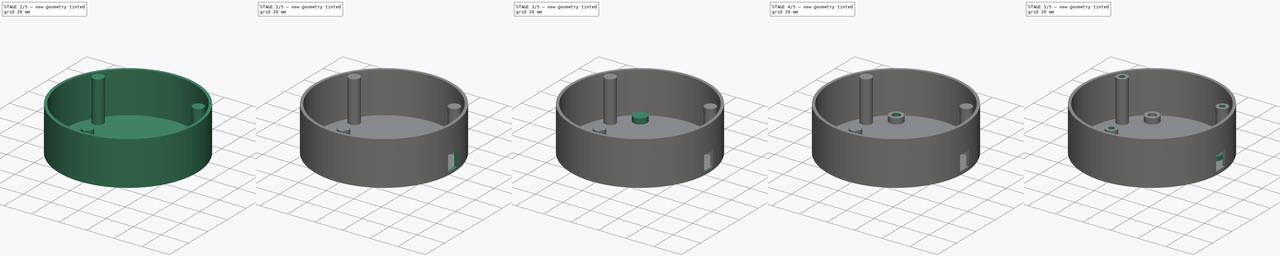
[diagram: build sequence overview — one tinted view per stage of 5, left to right]
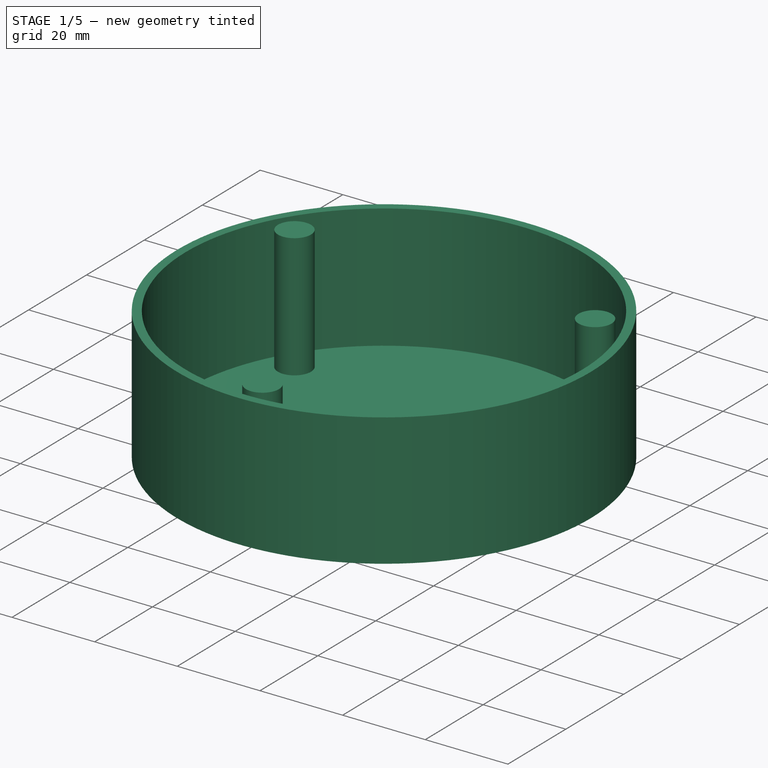
[diagram: stage 1 of 5 — iso view after this stage's code; geometry added in this stage tinted green]
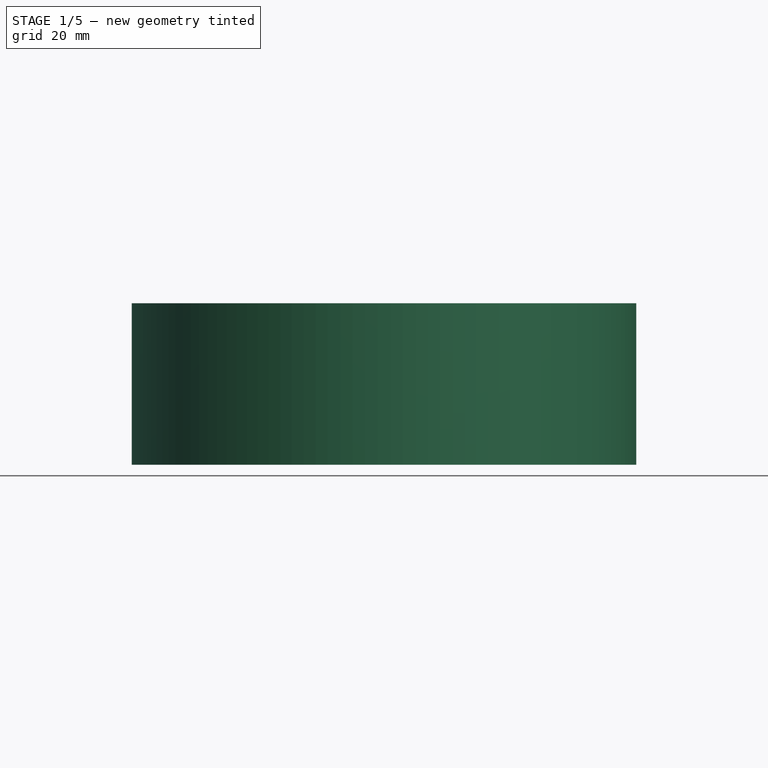
[diagram: stage 1 of 5 — front view after this stage's code; geometry added in this stage tinted green]
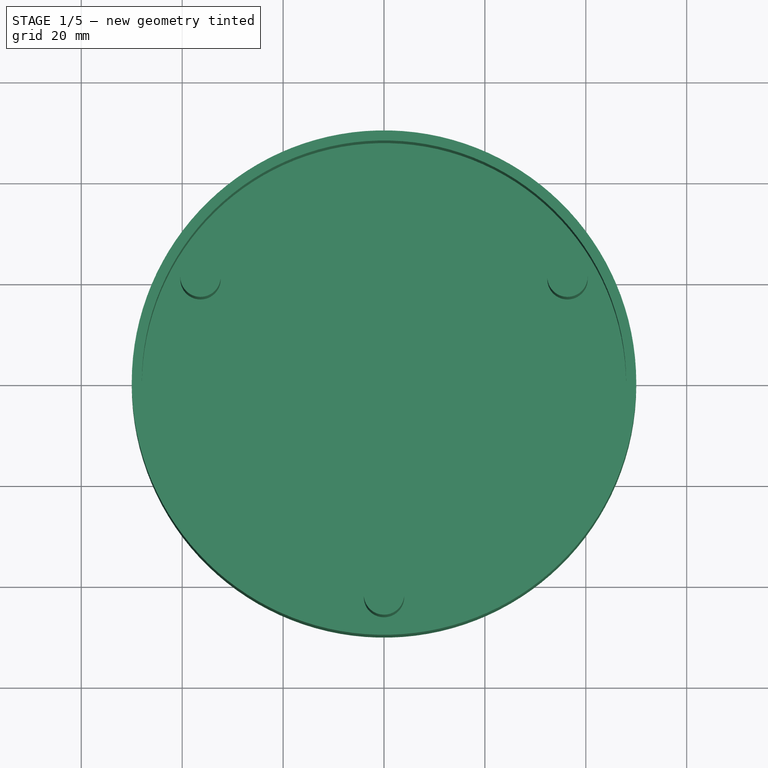
[diagram: stage 1 of 5 — top view after this stage's code; geometry added in this stage tinted green]
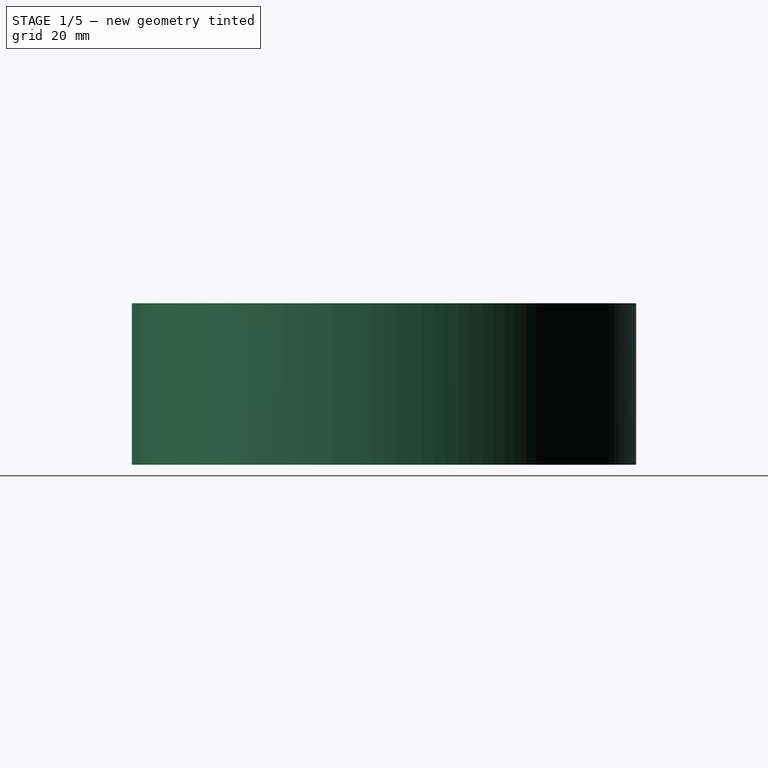
[diagram: stage 1 of 5 — right view after this stage's code; geometry added in this stage tinted green]
FCSTD DOCUMENT  (FreeCAD 0.20R29603 (Git))
Label: ElectroCompartment
License: All rights reserved
LicenseURL: http://en.wikipedia.org/wiki/All_rights_reserved
objects: Sketcher::SketchObject×14, PartDesign::Pocket×8, PartDesign::Pad×6, PartDesign::Plane×4, PartDesign::Mirrored×1, PartDesign::Body×1
note: 48 computed .brp shape members not serialized (recipe doc carries the construction recipe); baked Part::Feature solids carry a one-line shape summary decoded from their .brp

FEATURE [Sketcher::SketchObject] Sketch
  FullyConstrained = true
  MapMode = 5
  Support = -> [XY_Plane]
  sketch-geometry (1):
    g0: Circle CenterX=0 CenterY=0 CenterZ=0 NormalX=0 NormalY=0 NormalZ=1 AngleXU=0 Radius=50
  constraints (2):
    c: Coincident(g0,g-1)
    c: Diameter(g0) = 100
FEATURE [PartDesign::Pad] Pad
  Direction = (0,0,1)
  Length = 32
  Length2 = 10
  Profile = -> Sketch
  ReferenceAxis = -> Sketch [N_Axis]
  Type = 0
FEATURE [PartDesign::Plane] DatumPlane
  AttachmentOffset = pos=(0,0,32) rot=(0,0,1;0rad)
  Length = 95.8863
  MapMode = 5
  Placement = pos=(0,0,32) rot=(0,0,1;0rad)
  ResizeMode = 0
  Support = -> [XY_Plane]
  Width = 86.111
FEATURE [Sketcher::SketchObject] Sketch001
  FullyConstrained = true
  MapMode = 5
  Placement = pos=(0,0,32) rot=(0,0,1;0rad)
  Support = -> [DatumPlane]
  sketch-geometry (1):
    g0: Circle CenterX=0 CenterY=0 CenterZ=0 NormalX=0 NormalY=0 NormalZ=1 AngleXU=0 Radius=48
  constraints (2):
    c: Coincident(g0,g-1)
    c: Diameter(g0) = 96
FEATURE [PartDesign::Pocket] Pocket
  BaseFeature = -> Pad
  Direction = (0,0,-1)
  Length = 30
  Length2 = 5
  Profile = -> Sketch001
  ReferenceAxis = -> Sketch001 [N_Axis]
  Type = 0
FEATURE [Sketcher::SketchObject] Sketch002
  FullyConstrained = true
  MapMode = 5
  Placement = pos=(0,0,32) rot=(0,0,1;0rad)
  Support = -> [DatumPlane]
  sketch-geometry (6):
    g0: Circle CenterX=-36.3731 CenterY=21 CenterZ=0 NormalX=0 NormalY=0 NormalZ=1 AngleXU=0 Radius=4
    g1: Circle CenterX=0 CenterY=-42 CenterZ=0 NormalX=0 NormalY=0 NormalZ=1 AngleXU=0 Radius=4
    g2: Circle CenterX=0 CenterY=0 CenterZ=0 NormalX=0 NormalY=0 NormalZ=1 AngleXU=0 Radius=42
    g3: Circle CenterX=36.3731 CenterY=21 CenterZ=0 NormalX=0 NormalY=0 NormalZ=1 AngleXU=0 Radius=4
    g4: LineSegment StartX=-36.3731 StartY=21 StartZ=0 EndX=0 EndY=0 EndZ=0
    g5: LineSegment StartX=0 StartY=0 StartZ=0 EndX=36.3731 EndY=21 EndZ=0
  constraints (15):
    c: Equal(g0,g1)
    c: Diameter(g0) = 8
    c: Diameter(g2) = 84
    c: PointOnObject(g1,g-2)
    c: PointOnObject(g1,g2)
    c: PointOnObject(g0,g2)
    c: Coincident(g2,g-1)
    c: PointOnObject(g3,g2)
    c: Diameter(g3) = 8
    c: Coincident(g4,g0)
    c: Coincident(g4,g2)
    c: Coincident(g5,g2)
    c: Coincident(g5,g3)
    c: Angle(g-1,g5) = 0.523599
    c: Angle(g-1,g4) = 2.61799
FEATURE [PartDesign::Pad] Pad001
  BaseFeature = -> Pocket
  Direction = (0,0,1)
  Length = 10
  Length2 = 10
  Profile = -> Sketch002
  ReferenceAxis = -> Sketch002 [N_Axis]
  Type = 3
  UpToFace = -> Pocket [Face5]
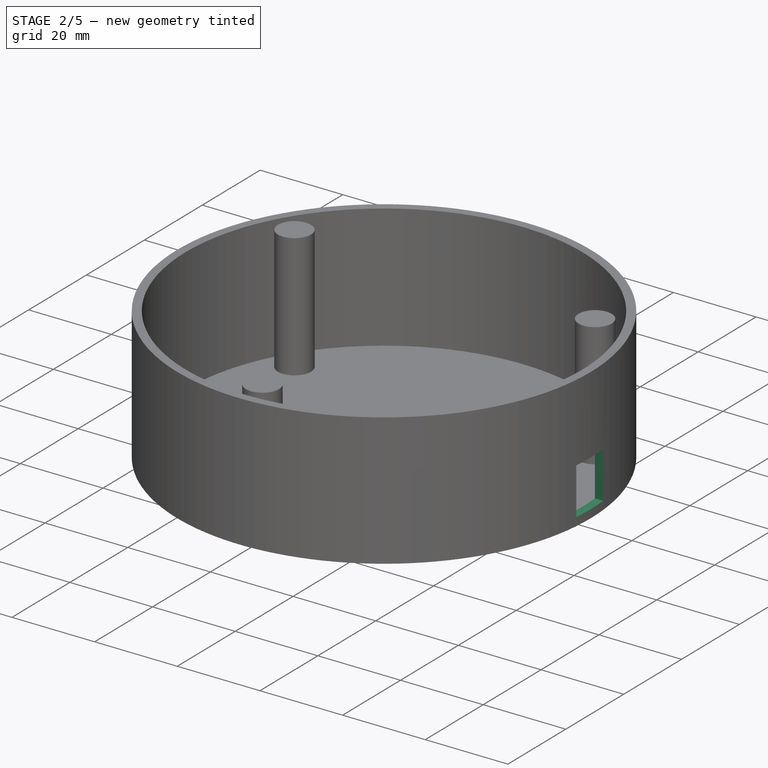
[diagram: stage 2 of 5 — iso view after this stage's code; geometry added in this stage tinted green]
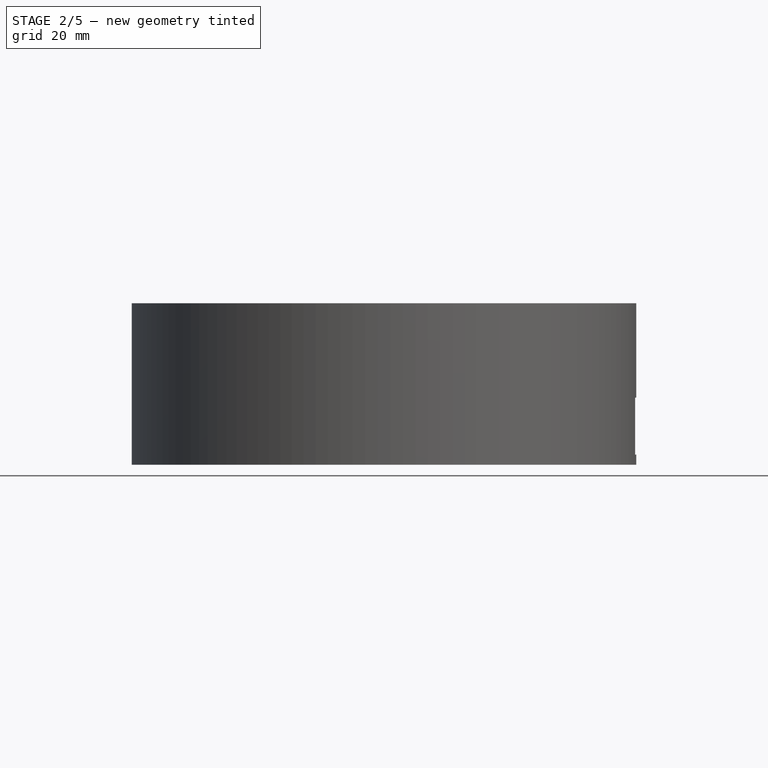
[diagram: stage 2 of 5 — front view after this stage's code; geometry added in this stage tinted green]
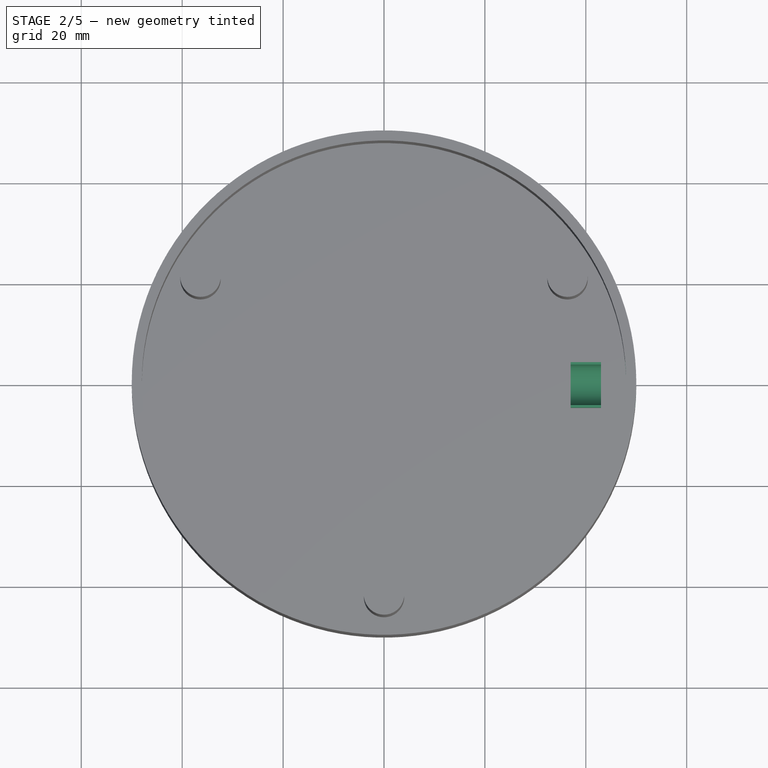
[diagram: stage 2 of 5 — top view after this stage's code; geometry added in this stage tinted green]
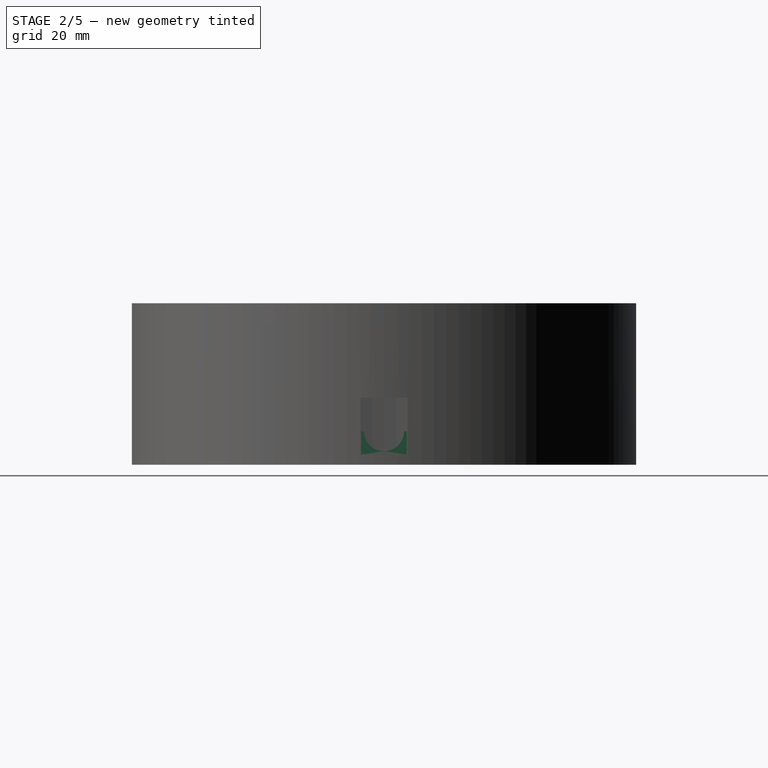
[diagram: stage 2 of 5 — right view after this stage's code; geometry added in this stage tinted green]
FEATURE [PartDesign::Plane] DatumPlane001
  AttachmentOffset = pos=(0,0,2) rot=(0,0,1;0rad)
  Length = 95.8863
  MapMode = 5
  Placement = pos=(0,0,2) rot=(0,0,1;0rad)
  ResizeMode = 0
  Support = -> [XY_Plane]
  Width = 86.111
FEATURE [PartDesign::Plane] DatumPlane002
  AttachmentOffset = pos=(0,0,50) rot=(0,0,1;0rad)
  Length = 83.6914
  MapMode = 5
  Placement = pos=(50,-1.11e-14,1.11e-14) rot=(0.57735,0.57735,0.57735;2.0944rad)
  ResizeMode = 0
  Support = -> [YZ_Plane]
  Width = 69.7206
FEATURE [Sketcher::SketchObject] Sketch005
  FullyConstrained = true
  MapMode = 5
  Placement = pos=(50,-1.11e-14,1.11e-14) rot=(0.57735,0.57735,0.57735;2.0944rad)
  Support = -> [DatumPlane002]
  sketch-geometry (5):
    g0: LineSegment StartX=4.65 StartY=13.3 StartZ=0 EndX=4.65 EndY=2 EndZ=0
    g1: LineSegment StartX=4.65 StartY=2 StartZ=0 EndX=-4.65 EndY=2 EndZ=0
    g2: LineSegment StartX=-4.65 StartY=2 StartZ=0 EndX=-4.65 EndY=13.3 EndZ=0
    g3: LineSegment StartX=-4.65 StartY=13.3 StartZ=0 EndX=4.65 EndY=13.3 EndZ=0
    g4: GeomPoint X=0 Y=7.65 Z=0
  constraints (13):
    c: Coincident(g0,g1)
    c: Coincident(g1,g2)
    c: Coincident(g2,g3)
    c: Coincident(g3,g0)
    c: Horizontal(g1)
    c: Horizontal(g3)
    c: Vertical(g0)
    c: Vertical(g2)
    c: Symmetric(g1,g0,g4)
    c: PointOnObject(g4,g-2)
    c: DistanceY(g2,g2) = 11.3
    c: DistanceX(g3,g3) = 9.3
    c: DistanceY(g-1,g0) = 2
FEATURE [PartDesign::Pocket] Pocket001
  BaseFeature = -> Pad001
  Direction = (-1,1e-16,-1e-16)
  Length = 10
  Length2 = 5
  Profile = -> Sketch005
  ReferenceAxis = -> Sketch005 [N_Axis]
  Type = 0
FEATURE [Sketcher::SketchObject] Sketch006
  FullyConstrained = true
  MapMode = 5
  Placement = pos=(0,0,2) rot=(0,0,1;0rad)
  Support = -> [DatumPlane001]
  sketch-geometry (5):
    g0: LineSegment StartX=37 StartY=-4.5 StartZ=0 EndX=37 EndY=4.5 EndZ=0
    g1: LineSegment StartX=37 StartY=4.5 StartZ=0 EndX=43 EndY=4.5 EndZ=0
    g2: LineSegment StartX=43 StartY=4.5 StartZ=0 EndX=43 EndY=-4.5 EndZ=0
    g3: LineSegment StartX=43 StartY=-4.5 StartZ=0 EndX=37 EndY=-4.5 EndZ=0
    g4: GeomPoint X=40 Y=0 Z=0
  constraints (13):
    c: Coincident(g0,g1)
    c: Coincident(g1,g2)
    c: Coincident(g2,g3)
    c: Coincident(g3,g0)
    c: Horizontal(g1)
    c: Horizontal(g3)
    c: Vertical(g0)
    c: Vertical(g2)
    c: Symmetric(g1,g0,g4)
    c: PointOnObject(g4,g-1)
    c: DistanceY(g2,g2) = 9
    c: DistanceX(g-1,g2) = 43
    c: DistanceX(g1,g1) = 6
FEATURE [PartDesign::Pad] Pad004
  BaseFeature = -> Pocket001
  Direction = (0,0,1)
  Length = 10
  Length2 = 10
  Profile = -> Sketch006
  ReferenceAxis = -> Sketch006 [N_Axis]
  Type = 0
FEATURE [Sketcher::SketchObject] Sketch007
  FullyConstrained = false
  MapMode = 5
  Placement = pos=(37,0,0) rot=(0.57735,-0.57735,-0.57735;2.0944rad)
  Support = -> [Pad004]
  sketch-geometry (7):
    g0: ArcOfCircle CenterX=0 CenterY=6.7 CenterZ=0 NormalX=0 NormalY=0 NormalZ=1 AngleXU=0 Radius=4 StartAngle=3.1666 EndAngle=6.25818
    g1: LineSegment StartX=-6.53799 StartY=2.7 StartZ=0 EndX=7.7033 EndY=2.7 EndZ=0
    g2: LineSegment StartX=-3.99875 StartY=6.6 StartZ=0 EndX=-6.9063 EndY=6.6 EndZ=0
    g3: LineSegment StartX=-6.9063 StartY=6.6 StartZ=0 EndX=-6.9063 EndY=15.9691 EndZ=0
    g4: LineSegment StartX=-6.9063 StartY=15.9691 StartZ=0 EndX=5.57529 EndY=15.9691 EndZ=0
    g5: LineSegment StartX=5.57529 StartY=15.9691 StartZ=0 EndX=5.57529 EndY=6.6 EndZ=0
    g6: LineSegment StartX=5.57529 StartY=6.6 StartZ=0 EndX=3.99875 EndY=6.6 EndZ=0
  constraints (18):
    c: PointOnObject(g0,g-2)
    c: Diameter(g0) = 8
    c: Horizontal(g1)
    c: Tangent(g1,g0)
    c: DistanceY(g-1,g1) = 2.7
    c: Horizontal(g2)
    c: Coincident(g3,g2)
    c: Vertical(g3)
    c: Coincident(g4,g3)
    c: Horizontal(g4)
    c: Coincident(g5,g4)
    c: Vertical(g5)
    c: Coincident(g6,g5)
    c: Horizontal(g6)
    c: DistanceY(g5,g2) = 0
    c: DistanceY(g1,g5) = 3.9
    c: Coincident(g0,g6)
    c: Coincident(g0,g2)
FEATURE [PartDesign::Pocket] Pocket002
  BaseFeature = -> Pad004
  Direction = (1,0,0)
  Length = 8
  Length2 = 5
  Profile = -> Sketch007
  ReferenceAxis = -> Sketch007 [N_Axis]
  Type = 0
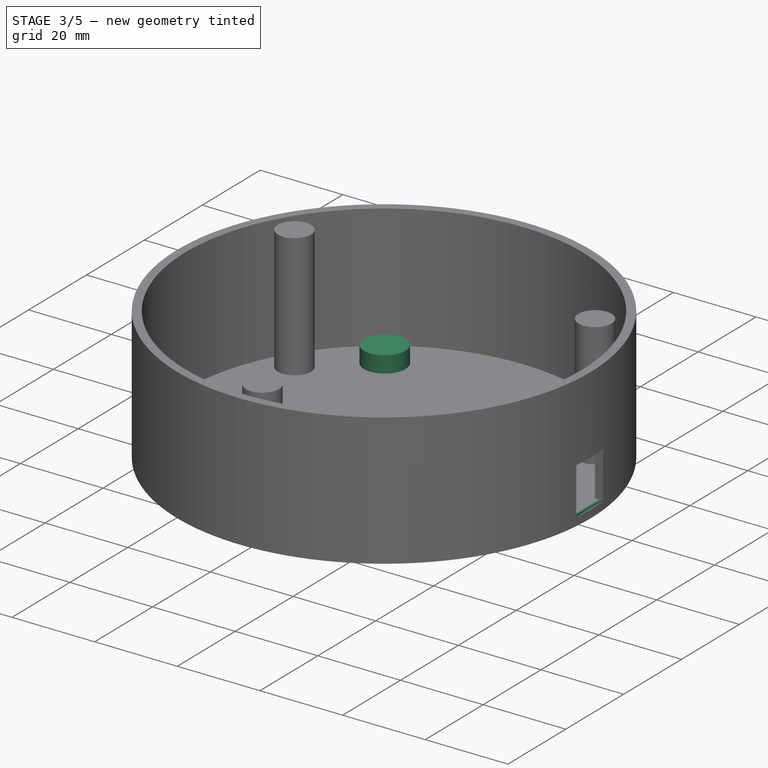
[diagram: stage 3 of 5 — iso view after this stage's code; geometry added in this stage tinted green]
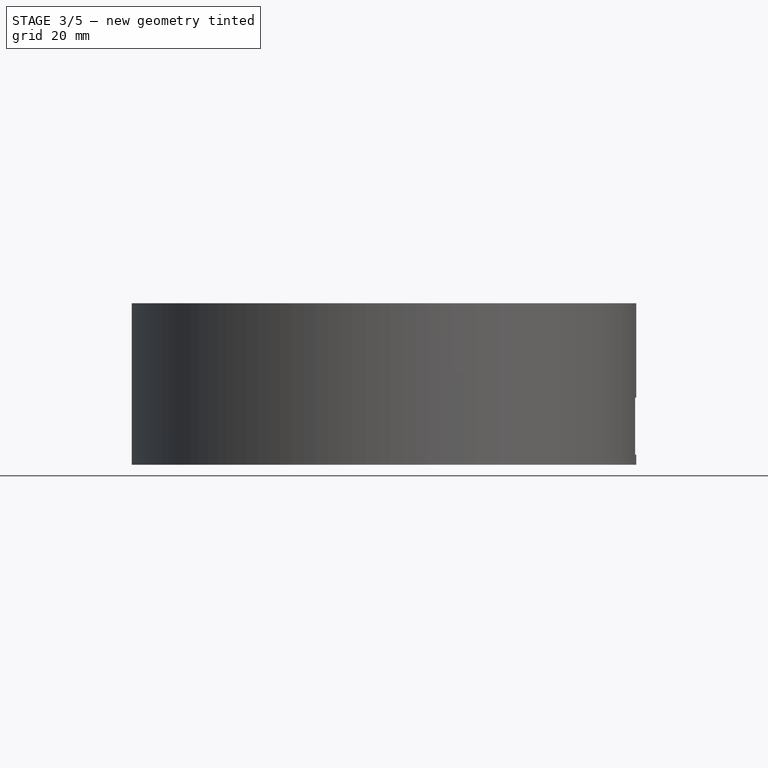
[diagram: stage 3 of 5 — front view after this stage's code; geometry added in this stage tinted green]
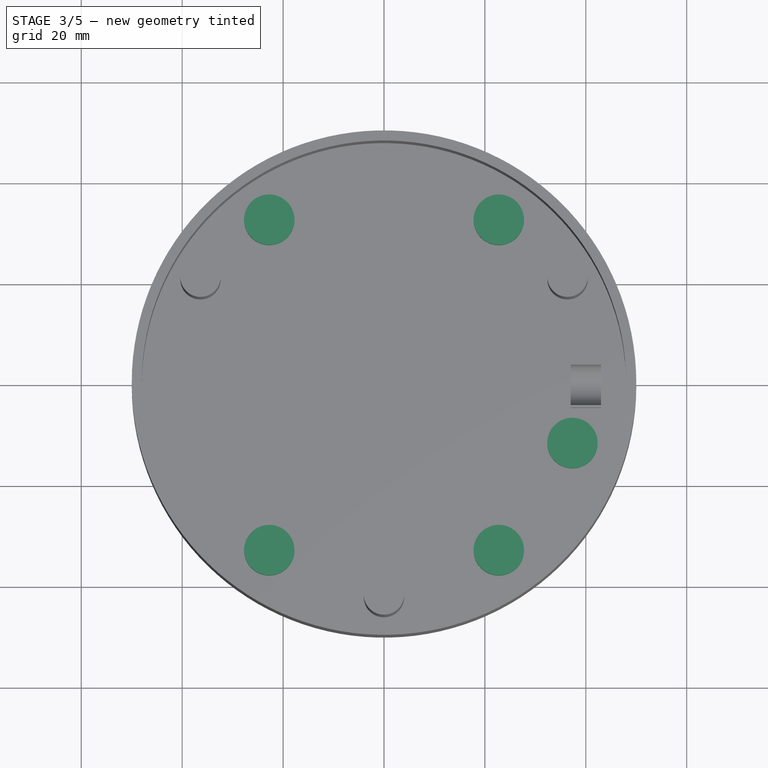
[diagram: stage 3 of 5 — top view after this stage's code; geometry added in this stage tinted green]
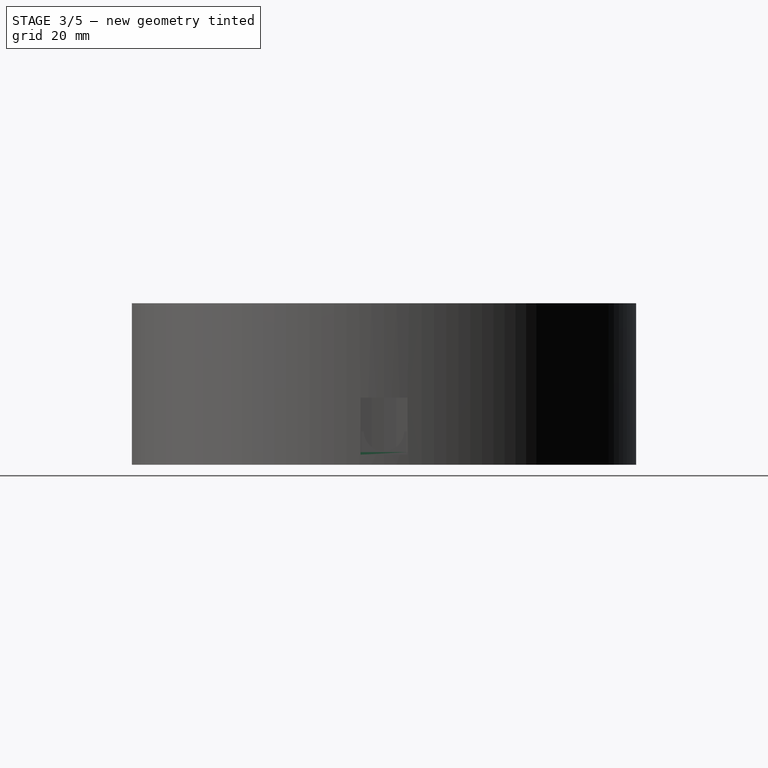
[diagram: stage 3 of 5 — right view after this stage's code; geometry added in this stage tinted green]
FEATURE [Sketcher::SketchObject] Sketch009
  FullyConstrained = true
  MapMode = 5
  Placement = pos=(0,0,2) rot=(0,0,1;0rad)
  Support = -> [DatumPlane001]
  sketch-geometry (4):
    g0: Circle CenterX=-22.75 CenterY=32.75 CenterZ=0 NormalX=0 NormalY=0 NormalZ=1 AngleXU=0 Radius=5
    g1: Circle CenterX=22.75 CenterY=32.75 CenterZ=0 NormalX=0 NormalY=0 NormalZ=1 AngleXU=0 Radius=5
    g2: Circle CenterX=22.75 CenterY=-32.75 CenterZ=0 NormalX=0 NormalY=0 NormalZ=1 AngleXU=0 Radius=5
    g3: Circle CenterX=-22.75 CenterY=-32.75 CenterZ=0 NormalX=0 NormalY=0 NormalZ=1 AngleXU=0 Radius=5
  constraints (12):
    c: DistanceX(g0,g-1) = 22.75
    c: DistanceY(g-1,g0) = 32.75
    c: Diameter(g0) = 10
    c: DistanceX(g-1,g1) = 22.75
    c: DistanceY(g-1,g1) = 32.75
    c: DistanceY(g2,g-1) = 32.75
    c: DistanceX(g-1,g2) = 22.75
    c: DistanceX(g3,g-1) = 22.75
    c: DistanceY(g3,g-1) = 32.75
    c: Equal(g1,g2)
    c: Equal(g1,g3)
    c: Diameter(g1) = 10
FEATURE [PartDesign::Pad] Pad006
  BaseFeature = -> Pocket002
  Direction = (0,0,1)
  Length = 4
  Length2 = 10
  Profile = -> Sketch009
  ReferenceAxis = -> Sketch009 [N_Axis]
  Type = 0
FEATURE [Sketcher::SketchObject] Sketch011
  FullyConstrained = true
  MapMode = 5
  Placement = pos=(0,0,2) rot=(0,0,1;0rad)
  Support = -> [DatumPlane001]
  sketch-geometry (6):
    g0: LineSegment StartX=49.7833 StartY=4.65 StartZ=0 EndX=49.7833 EndY=-4.65 EndZ=0
    g1: LineSegment StartX=0 StartY=0 StartZ=0 EndX=49.7833 EndY=4.65 EndZ=0
    g2: LineSegment StartX=49.7833 StartY=-4.65 StartZ=0 EndX=0 EndY=0 EndZ=0
    g3: LineSegment StartX=49.2833 StartY=4.65 StartZ=0 EndX=49.2833 EndY=-4.65 EndZ=0
    g4: LineSegment StartX=49.2833 StartY=-4.65 StartZ=0 EndX=49.7833 EndY=-4.65 EndZ=0
    g5: LineSegment StartX=49.2833 StartY=4.65 StartZ=0 EndX=49.7833 EndY=4.65 EndZ=0
  constraints (16):
    c: Vertical(g0)
    c: Coincident(g1,g-1)
    c: Coincident(g1,g0)
    c: Coincident(g2,g0)
    c: Coincident(g2,g1)
    c: DistanceY(g0,g0) = 9.3
    c: DistanceY(g1,g0) = 4.65
    c: Vertical(g3)
    c: Coincident(g4,g3)
    c: Coincident(g4,g0)
    c: Horizontal(g4)
    c: Coincident(g5,g3)
    c: Coincident(g5,g0)
    c: Horizontal(g5)
    c: DistanceX(g5,g5) = 0.5
    c: Distance(g1) = 50
FEATURE [PartDesign::Pad] Pad007
  BaseFeature = -> Pad006
  Direction = (0,0,1)
  Length = 0.5
  Length2 = 10
  Profile = -> Sketch011
  ReferenceAxis = -> Sketch011 [N_Axis]
  Type = 0
FEATURE [Sketcher::SketchObject] Sketch012
  FullyConstrained = true
  MapMode = 5
  Placement = pos=(0,0,2) rot=(0,0,1;0rad)
  Support = -> [DatumPlane001]
  sketch-geometry (1):
    g0: Circle CenterX=37.35 CenterY=-11.5 CenterZ=0 NormalX=0 NormalY=0 NormalZ=1 AngleXU=0 Radius=5
  constraints (3):
    c: Diameter(g0) = 10
    c: DistanceY(g0,g-1) = 11.5
    c: DistanceX(g-1,g0) = 37.35
FEATURE [PartDesign::Pad] Pad008
  BaseFeature = -> Pad007
  Direction = (0,0,1)
  Length = 3
  Length2 = 10
  Profile = -> Sketch012
  ReferenceAxis = -> Sketch012 [N_Axis]
  Type = 0
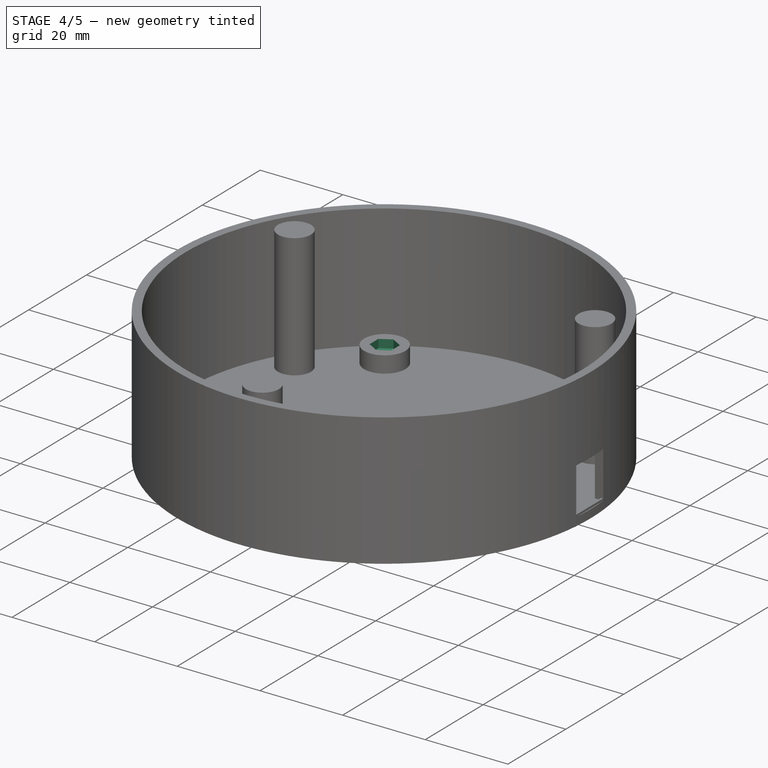
[diagram: stage 4 of 5 — iso view after this stage's code; geometry added in this stage tinted green]
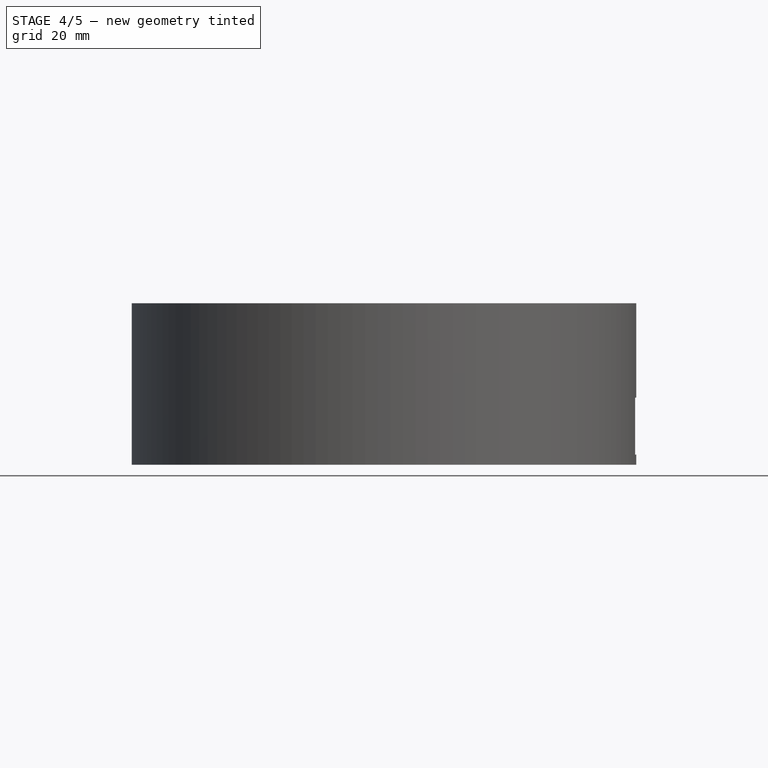
[diagram: stage 4 of 5 — front view after this stage's code; geometry added in this stage tinted green]
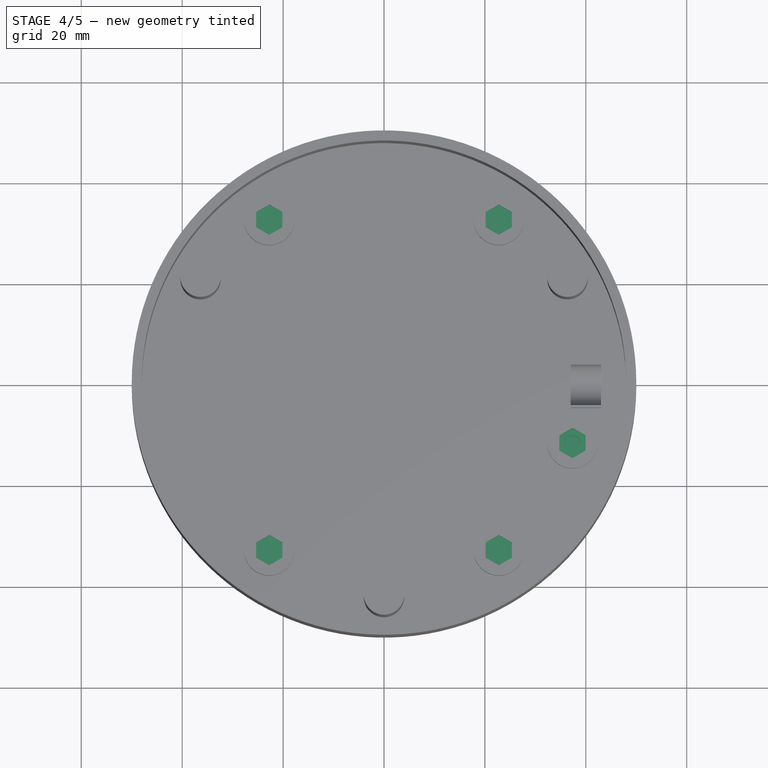
[diagram: stage 4 of 5 — top view after this stage's code; geometry added in this stage tinted green]
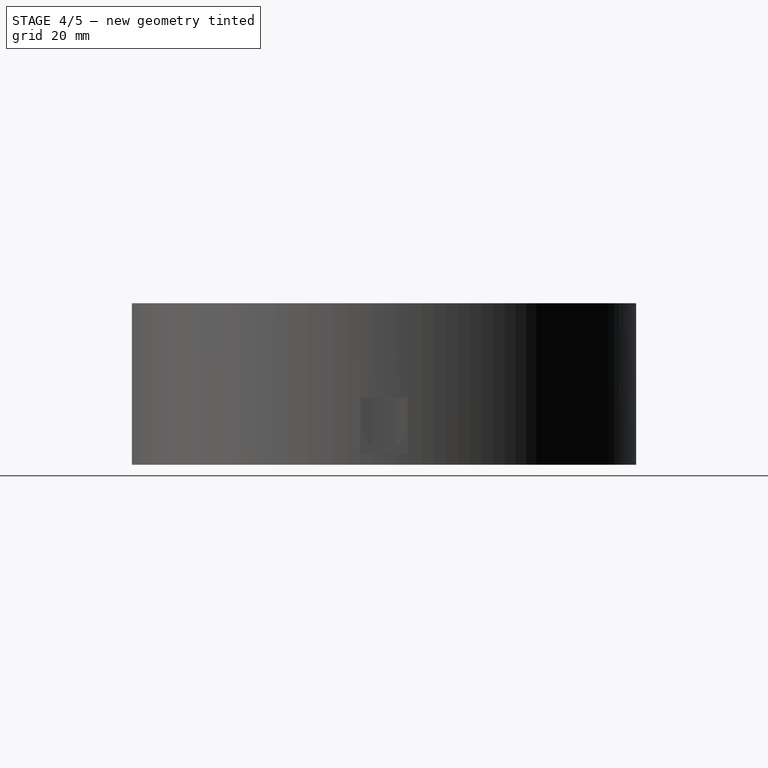
[diagram: stage 4 of 5 — right view after this stage's code; geometry added in this stage tinted green]
FEATURE [Sketcher::SketchObject] Sketch013
  FullyConstrained = true
  MapMode = 5
  Placement = pos=(0,0,5) rot=(0,0,1;0rad)
  Support = -> [Pad008]
  sketch-geometry (7):
    g0: LineSegment StartX=39.95 StartY=-13.0011 StartZ=0 EndX=39.95 EndY=-9.99889 EndZ=0
    g1: LineSegment StartX=39.95 StartY=-9.99889 StartZ=0 EndX=37.35 EndY=-8.49778 EndZ=0
    g2: LineSegment StartX=37.35 StartY=-8.49778 StartZ=0 EndX=34.75 EndY=-9.99889 EndZ=0
    g3: LineSegment StartX=34.75 StartY=-9.99889 StartZ=0 EndX=34.75 EndY=-13.0011 EndZ=0
    g4: LineSegment StartX=34.75 StartY=-13.0011 StartZ=0 EndX=37.35 EndY=-14.5022 EndZ=0
    g5: LineSegment StartX=37.35 StartY=-14.5022 StartZ=0 EndX=39.95 EndY=-13.0011 EndZ=0
    g6: Circle CenterX=37.35 CenterY=-11.5 CenterZ=0 NormalX=0 NormalY=0 NormalZ=1 AngleXU=0 Radius=3.00222
  constraints (17):
    c: Coincident(g0,g1)
    c: Coincident(g1,g2)
    c: Coincident(g2,g3)
    c: Coincident(g3,g4)
    c: Coincident(g4,g5)
    c: Coincident(g5,g0)
    c: Equal(g0, g1-g5) x5
    c: PointOnObject(g0,g6)
    c: PointOnObject(g1,g6)
    c: PointOnObject(g2,g6)
    c: PointOnObject(g3,g6)
    c: PointOnObject(g4,g6)
    c: PointOnObject(g5,g6)
    c: DistanceY(g6,g-1) = 11.5
    c: DistanceX(g-1,g6) = 37.35
    c: Vertical(g0)
    c: DistanceX(g2,g0) = 5.2
FEATURE [PartDesign::Pocket] Pocket004
  BaseFeature = -> Pad008
  Direction = (0,0,-1)
  Length = 2
  Length2 = 5
  Profile = -> Sketch013
  ReferenceAxis = -> Sketch013 [N_Axis]
  Type = 0
FEATURE [Sketcher::SketchObject] Sketch014
  FullyConstrained = true
  MapMode = 5
  Placement = pos=(0,0,5) rot=(0,0,1;0rad)
  Support = -> [Pocket004]
  sketch-geometry (1):
    g0: Circle CenterX=37.35 CenterY=-11.5 CenterZ=0 NormalX=0 NormalY=0 NormalZ=1 AngleXU=0 Radius=1.5
  constraints (3):
    c: Diameter(g0) = 3
    c: DistanceY(g0,g-1) = 11.5
    c: DistanceX(g-1,g0) = 37.35
FEATURE [PartDesign::Pocket] Pocket005
  BaseFeature = -> Pocket004
  Direction = (0,0,-1)
  Length = 4
  Length2 = 5
  Profile = -> Sketch014
  ReferenceAxis = -> Sketch014 [N_Axis]
  Type = 0
FEATURE [PartDesign::Plane] DatumPlane003
  AttachmentOffset = pos=(0,0,6) rot=(0,0,1;0rad)
  Length = 95.8863
  MapMode = 5
  Placement = pos=(0,0,6) rot=(0,0,1;0rad)
  ResizeMode = 0
  Support = -> [XY_Plane]
  Width = 86.111
FEATURE [Sketcher::SketchObject] Sketch010
  FullyConstrained = true
  MapMode = 5
  Placement = pos=(0,0,6) rot=(0,0,1;0rad)
  Support = -> [DatumPlane003]
  sketch-geometry (28):
    g0: LineSegment StartX=-20.15 StartY=31.2489 StartZ=0 EndX=-20.15 EndY=34.2511 EndZ=0
    g1: LineSegment StartX=-20.15 StartY=34.2511 StartZ=0 EndX=-22.75 EndY=35.7522 EndZ=0
    g2: LineSegment StartX=-22.75 StartY=35.7522 StartZ=0 EndX=-25.35 EndY=34.2511 EndZ=0
    g3: LineSegment StartX=-25.35 StartY=34.2511 StartZ=0 EndX=-25.35 EndY=31.2489 EndZ=0
    g4: LineSegment StartX=-25.35 StartY=31.2489 StartZ=0 EndX=-22.75 EndY=29.7478 EndZ=0
    g5: LineSegment StartX=-22.75 StartY=29.7478 StartZ=0 EndX=-20.15 EndY=31.2489 EndZ=0
    g6: Circle CenterX=-22.75 CenterY=32.75 CenterZ=0 NormalX=0 NormalY=0 NormalZ=1 AngleXU=0 Radius=3.00222
    g7: LineSegment StartX=25.35 StartY=-34.2511 StartZ=0 EndX=25.35 EndY=-31.2489 EndZ=0
    g8: LineSegment StartX=25.35 StartY=-31.2489 StartZ=0 EndX=22.75 EndY=-29.7478 EndZ=0
    g9: LineSegment StartX=22.75 StartY=-29.7478 StartZ=0 EndX=20.15 EndY=-31.2489 EndZ=0
    g10: LineSegment StartX=20.15 StartY=-31.2489 StartZ=0 EndX=20.15 EndY=-34.2511 EndZ=0
    g11: LineSegment StartX=20.15 StartY=-34.2511 StartZ=0 EndX=22.75 EndY=-35.7522 EndZ=0
    g12: LineSegment StartX=22.75 StartY=-35.7522 StartZ=0 EndX=25.35 EndY=-34.2511 EndZ=0
    g13: Circle CenterX=22.75 CenterY=-32.75 CenterZ=0 NormalX=0 NormalY=0 NormalZ=1 AngleXU=0 Radius=3.00222
    g14: LineSegment StartX=22.75 StartY=35.7522 StartZ=0 EndX=20.15 EndY=34.2511 EndZ=0
    g15: LineSegment StartX=20.15 StartY=34.2511 StartZ=0 EndX=20.15 EndY=31.2489 EndZ=0
    g16: LineSegment StartX=20.15 StartY=31.2489 StartZ=0 EndX=22.75 EndY=29.7478 EndZ=0
    g17: LineSegment StartX=22.75 StartY=29.7478 StartZ=0 EndX=25.35 EndY=31.2489 EndZ=0
    g18: LineSegment StartX=25.35 StartY=31.2489 StartZ=0 EndX=25.35 EndY=34.2511 EndZ=0
    g19: LineSegment StartX=25.35 StartY=34.2511 StartZ=0 EndX=22.75 EndY=35.7522 EndZ=0
    g20: Circle CenterX=22.75 CenterY=32.75 CenterZ=0 NormalX=0 NormalY=0 NormalZ=1 AngleXU=0 Radius=3.00222
    g21: LineSegment StartX=-20.15 StartY=-31.2489 StartZ=0 EndX=-22.75 EndY=-29.7478 EndZ=0
    g22: LineSegment StartX=-22.75 StartY=-29.7478 StartZ=0 EndX=-25.35 EndY=-31.2489 EndZ=0
    g23: LineSegment StartX=-25.35 StartY=-31.2489 StartZ=0 EndX=-25.35 EndY=-34.2511 EndZ=0
    g24: LineSegment StartX=-25.35 StartY=-34.2511 StartZ=0 EndX=-22.75 EndY=-35.7522 EndZ=0
    g25: LineSegment StartX=-22.75 StartY=-35.7522 StartZ=0 EndX=-20.15 EndY=-34.2511 EndZ=0
    g26: LineSegment StartX=-20.15 StartY=-34.2511 StartZ=0 EndX=-20.15 EndY=-31.2489 EndZ=0
    g27: Circle CenterX=-22.75 CenterY=-32.75 CenterZ=0 NormalX=0 NormalY=0 NormalZ=1 AngleXU=0 Radius=3.00222
  constraints (68):
    c: Coincident(g0,g1)
    c: Coincident(g1,g2)
    c: Coincident(g2,g3)
    c: Coincident(g3,g4)
    c: Coincident(g4,g5)
    c: Coincident(g5,g0)
    c: Equal(g0, g1-g5) x5
    c: PointOnObject(g0,g6)
    c: PointOnObject(g1,g6)
    c: PointOnObject(g2,g6)
    c: PointOnObject(g3,g6)
    c: PointOnObject(g4,g6)
    c: PointOnObject(g5,g6)
    c: Coincident(g7,g8)
    c: Coincident(g8,g9)
    c: Coincident(g9,g10)
    c: Coincident(g10,g11)
    c: Coincident(g11,g12)
    c: Coincident(g12,g7)
    c: Equal(g7, g8-g12) x5
    c: PointOnObject(g7,g13)
    c: PointOnObject(g8,g13)
    c: PointOnObject(g9,g13)
    c: PointOnObject(g10,g13)
    c: PointOnObject(g11,g13)
    c: PointOnObject(g12,g13)
    c: Coincident(g14,g15)
    c: Coincident(g15,g16)
    c: Coincident(g16,g17)
    c: Coincident(g17,g18)
    c: Coincident(g18,g19)
    c: Coincident(g19,g14)
    c: Equal(g14, g15-g19) x5
    c: PointOnObject(g14,g20)
    c: PointOnObject(g15,g20)
    c: PointOnObject(g16,g20)
    c: PointOnObject(g17,g20)
    c: PointOnObject(g18,g20)
    c: PointOnObject(g19,g20)
    c: Vertical(g15)
    c: Vertical(g3)
    c: Vertical(g10)
    c: DistanceX(g14,g18) = 5.2
    c: DistanceX(g9,g7) = 5.2
    c: DistanceX(g2,g0) = 5.2
    c: DistanceX(g6,g-1) = 22.75
    c: DistanceY(g-1,g6) = 32.75
    c: DistanceX(g-1,g20) = 22.75
    c: DistanceY(g-1,g20) = 32.75
    c: DistanceX(g-1,g13) = 22.75
    c: DistanceY(g13,g-1) = 32.75
    c: Coincident(g21,g22)
    c: Coincident(g22,g23)
    c: Coincident(g23,g24)
    c: Coincident(g24,g25)
    c: Coincident(g25,g26)
    c: Coincident(g26,g21)
    c: Equal(g21, g22-g26) x5
    c: PointOnObject(g21,g27)
    c: PointOnObject(g22,g27)
    c: PointOnObject(g23,g27)
    c: PointOnObject(g24,g27)
    c: PointOnObject(g25,g27)
    c: PointOnObject(g26,g27)
    c: Vertical(g23)
    c: DistanceX(g22,g21) = 5.2
    c: DistanceX(g27,g-1) = 22.75
    c: DistanceY(g27,g-1) = 32.75
FEATURE [PartDesign::Pocket] Pocket006
  BaseFeature = -> Pocket005
  Direction = (0,0,-1)
  Length = 2
  Length2 = 5
  Profile = -> Sketch010
  ReferenceAxis = -> Sketch010 [N_Axis]
  Type = 0
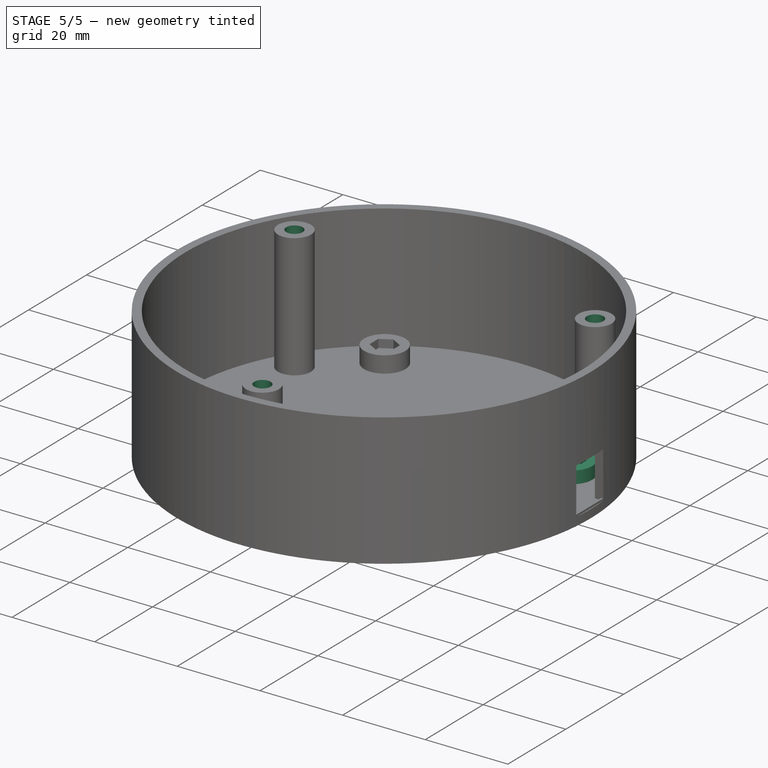
[diagram: stage 5 of 5 — iso view after this stage's code; geometry added in this stage tinted green]
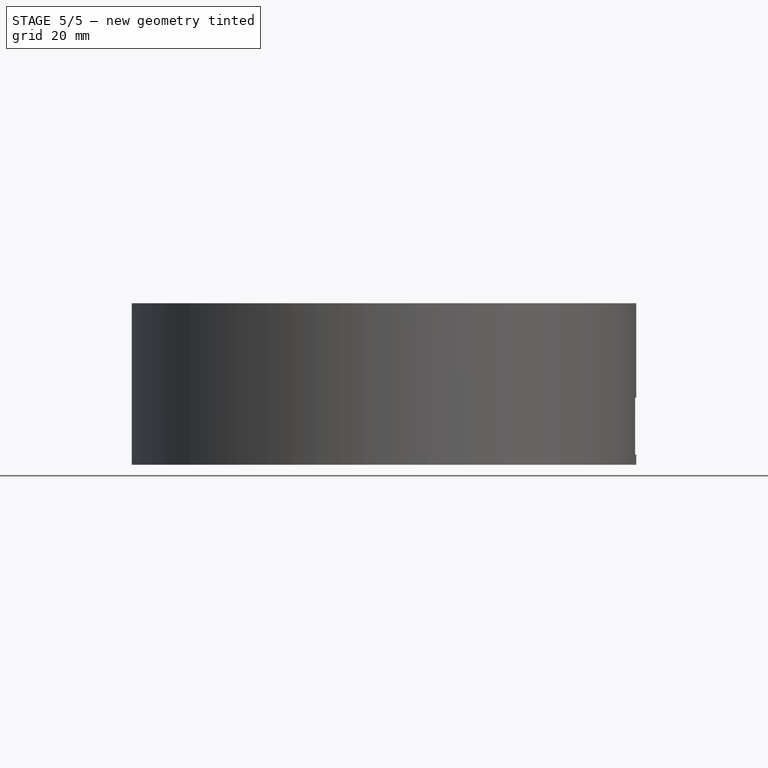
[diagram: stage 5 of 5 — front view after this stage's code; geometry added in this stage tinted green]
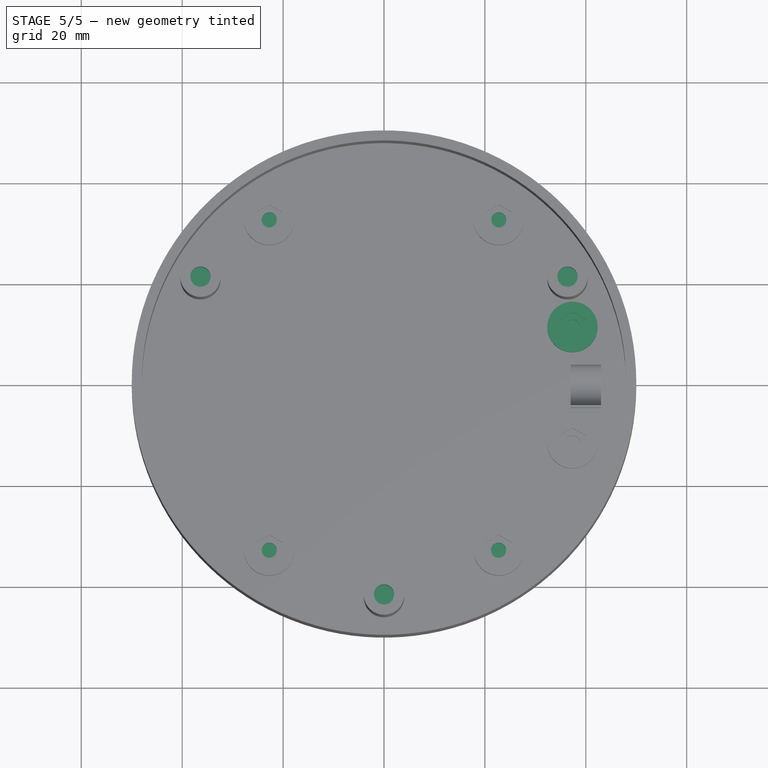
[diagram: stage 5 of 5 — top view after this stage's code; geometry added in this stage tinted green]
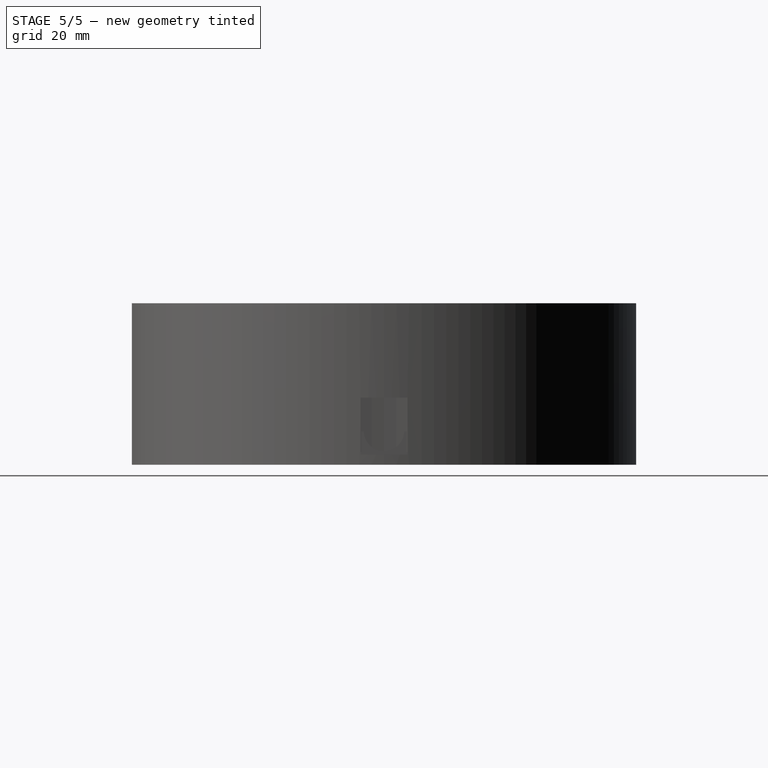
[diagram: stage 5 of 5 — right view after this stage's code; geometry added in this stage tinted green]
FEATURE [Sketcher::SketchObject] Sketch015
  FullyConstrained = true
  MapMode = 5
  Placement = pos=(0,0,6) rot=(0,0,1;0rad)
  Support = -> [DatumPlane003]
  sketch-geometry (4):
    g0: Circle CenterX=-22.75 CenterY=32.75 CenterZ=0 NormalX=0 NormalY=0 NormalZ=1 AngleXU=0 Radius=1.5
    g1: Circle CenterX=22.75 CenterY=32.75 CenterZ=0 NormalX=0 NormalY=0 NormalZ=1 AngleXU=0 Radius=1.5
    g2: Circle CenterX=22.7 CenterY=-32.75 CenterZ=0 NormalX=0 NormalY=0 NormalZ=1 AngleXU=0 Radius=1.5
    g3: Circle CenterX=-22.75 CenterY=-32.75 CenterZ=0 NormalX=0 NormalY=0 NormalZ=1 AngleXU=0 Radius=1.5
  constraints (12):
    c: Diameter(g0) = 3
    c: DistanceX(g0,g-1) = 22.75
    c: DistanceY(g-1,g0) = 32.75
    c: Diameter(g2) = 3
    c: Diameter(g1) = 3
    c: Diameter(g3) = 3
    c: DistanceX(g-1,g1) = 22.75
    c: DistanceY(g-1,g1) = 32.75
    c: DistanceX(g-1,g2) = 22.7
    c: DistanceY(g2,g-1) = 32.75
    c: DistanceY(g3,g-1) = 32.75
    c: DistanceX(g3,g-1) = 22.75
FEATURE [PartDesign::Pocket] Pocket007
  BaseFeature = -> Pocket006
  Direction = (0,0,-1)
  Length = 5
  Length2 = 5
  Profile = -> Sketch015
  ReferenceAxis = -> Sketch015 [N_Axis]
  Type = 0
FEATURE [Sketcher::SketchObject] Sketch016
  FullyConstrained = true
  MapMode = 5
  Placement = pos=(0,0,32) rot=(0,0,1;0rad)
  Support = -> [DatumPlane]
  sketch-geometry (6):
    g0: Circle CenterX=-36.3731 CenterY=21 CenterZ=0 NormalX=0 NormalY=0 NormalZ=1 AngleXU=0 Radius=2
    g1: Circle CenterX=36.3731 CenterY=21 CenterZ=0 NormalX=0 NormalY=0 NormalZ=1 AngleXU=0 Radius=2
    g2: Circle CenterX=0 CenterY=-42 CenterZ=0 NormalX=0 NormalY=0 NormalZ=1 AngleXU=0 Radius=2
    g3: Circle CenterX=0 CenterY=0 CenterZ=0 NormalX=0 NormalY=0 NormalZ=1 AngleXU=0 Radius=42
    g4: LineSegment StartX=-36.3731 StartY=21 StartZ=0 EndX=0 EndY=0 EndZ=0
    g5: LineSegment StartX=0 StartY=0 StartZ=0 EndX=36.3731 EndY=21 EndZ=0
  constraints (15):
    c: Coincident(g3,g-1)
    c: Diameter(g3) = 84
    c: PointOnObject(g2,g-2)
    c: PointOnObject(g2,g3)
    c: PointOnObject(g0,g3)
    c: PointOnObject(g1,g3)
    c: Coincident(g4,g0)
    c: Coincident(g4,g3)
    c: Coincident(g5,g3)
    c: Coincident(g5,g1)
    c: Angle(g-1,g5) = 0.523599
    c: Angle(g-1,g4) = 2.61799
    c: Diameter(g0) = 4
    c: Diameter(g1) = 4
    c: Diameter(g2) = 4
FEATURE [PartDesign::Pocket] Pocket008
  BaseFeature = -> Pocket007
  Direction = (0,0,-1)
  Length = 5.8
  Length2 = 5
  Profile = -> Sketch016
  ReferenceAxis = -> Sketch016 [N_Axis]
  Type = 0
FEATURE [PartDesign::Mirrored] Mirrored
  BaseFeature = -> Pocket008
  MirrorPlane = -> Sketch012 [H_Axis]
  Originals = -> [Pad008,Pocket004,Pocket005]
FEATURE [PartDesign::Body] Body
  Group = -> [Sketch,Pad,DatumPlane,Sketch001,Pocket,Sketch002,Pad001,DatumPlane001,DatumPlane002,Sketch005,Pocket001,Sketch006,Pad004,Sketch007,Pocket002,Sketch009,Pad006,Sketch010,Sketch011,Pad007,Sketch012,Pad008,Sketch013,Pocket004,Sketch014,Pocket005,DatumPlane003,Pocket006,Sketch015,Pocket007,Sketch016,Pocket008,Mirrored]
  Origin = -> Origin
  Tip = -> Mirrored
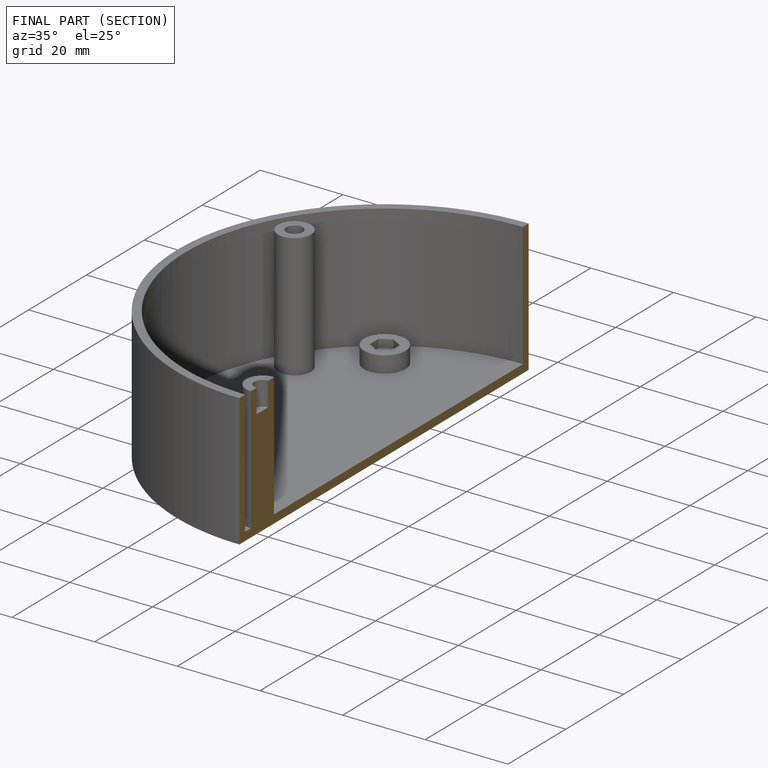
[diagram: finished part — half-section view (interior)]
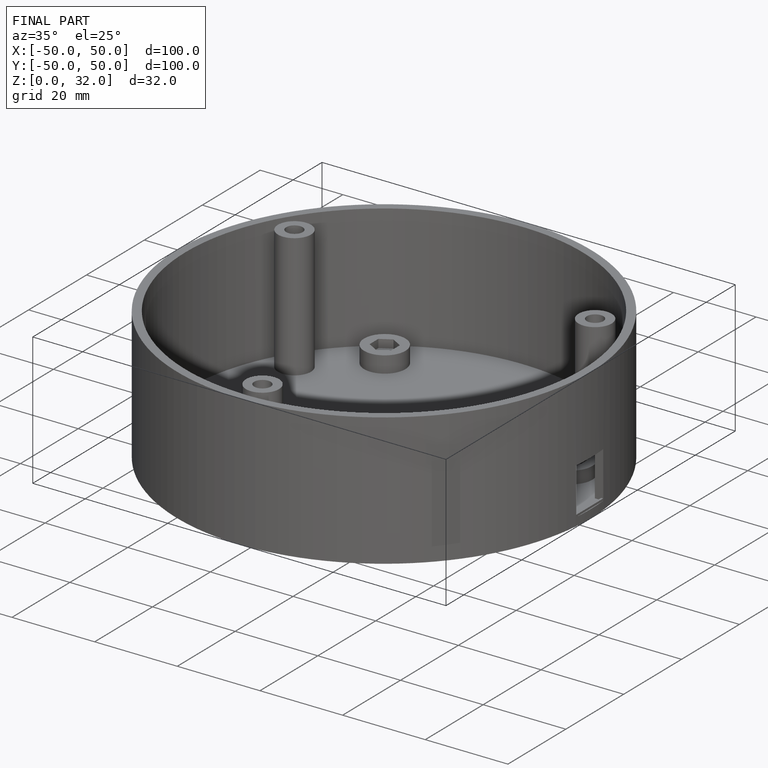
[diagram: finished part — iso view with bounding-box wireframe]
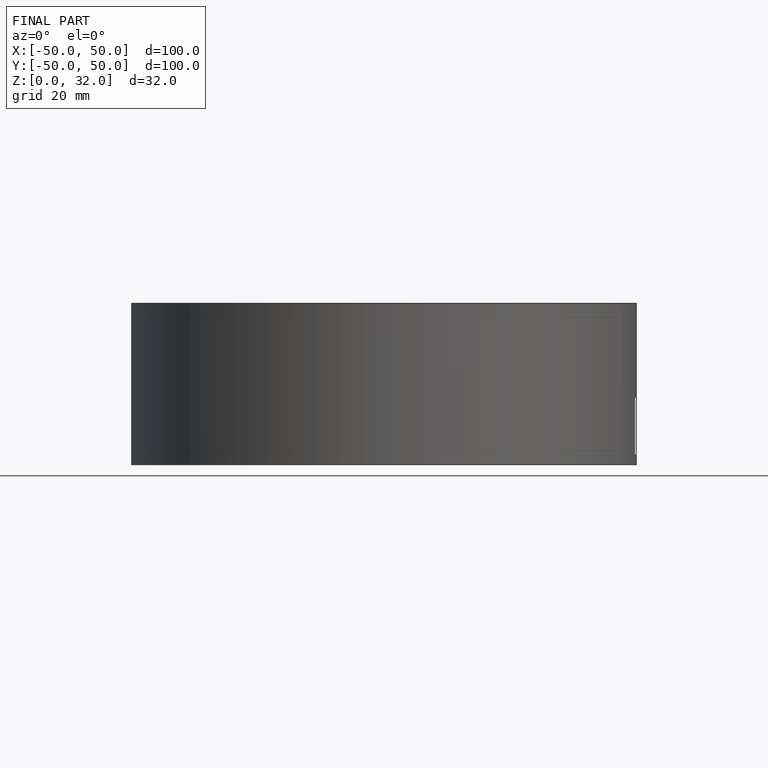
[diagram: finished part — front view with bounding-box wireframe]
